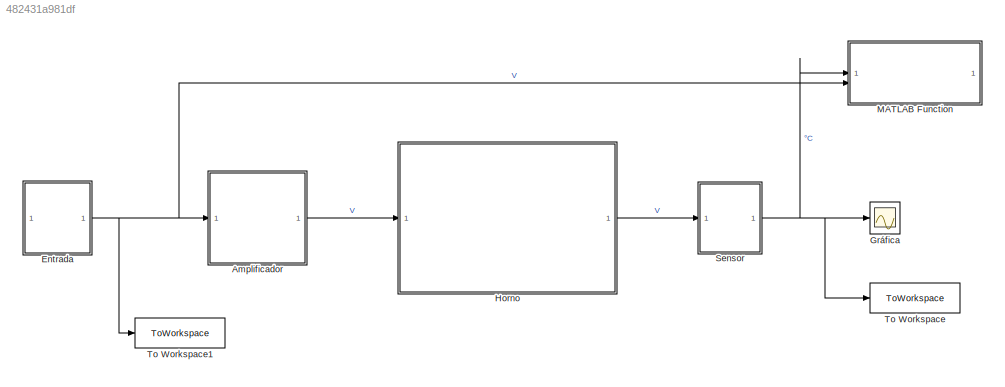
MODEL slx_482431a981df
KIND model
CONFIG AbsTol = auto
CONFIG EnableMultiTasking = off
CONFIG FixedStep = auto
CONFIG MaxStep = auto
CONFIG MinStep = auto
CONFIG RelTol = 1e-3
CONFIG SampleTimeConstraint = Unconstrained
CONFIG SolverName = VariableStepAuto
CONFIG StartTime = 0.0
CONFIG StopTime = 30
WORKSPACE source: mxarray member
WORKSPACE algo = 1
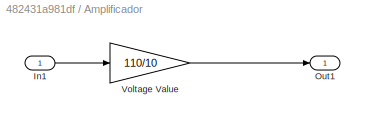
BLOCK [SubSystem] Amplificador
BLOCK [Inport] Amplificador/In1
BLOCK [Outport] Amplificador/Out1
BLOCK [Gain] Amplificador/Voltage Value
  Gain = 110/10
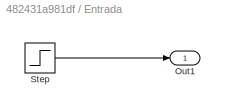
BLOCK [SubSystem] Entrada
BLOCK [Outport] Entrada/Out1
BLOCK [Step] Entrada/Step
  After = 2.5
  SampleTime = 0
  Time = 0
BLOCK [Scope] Gráfica
  Floating = off
  NumInputPorts = 1
  ScopeSpecificationString = Simulink.scopes.TimeScopeBlockCfg('CurrentConfiguration', extmgr.ConfigurationSet(extmgr.Configuration('Core','General UI',true),extmgr.Configuration('Core','Source UI',true),extmgr.Configuration('Sources','WiredSimulink',true),extmgr.Configuration('Visuals','Time Domain',true,'SerializedDisplays',{struct('MinYLimReal','17.51684','MaxYLimReal','42.3484','YLabelReal','','MinYLimMag','17.51684','Max...<+1413ch>
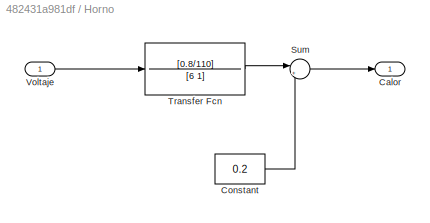
BLOCK [SubSystem] Horno
BLOCK [Outport] Horno/Calor
BLOCK [Constant] Horno/Constant
  Value = 0.2
  VectorParams1D = off
BLOCK [Sum] Horno/Sum
  Inputs = |++
BLOCK [TransferFcn] Horno/Transfer Fcn
  Denominator = [6 1]
  Numerator = [0.8/110]
BLOCK [Inport] Horno/Voltaje
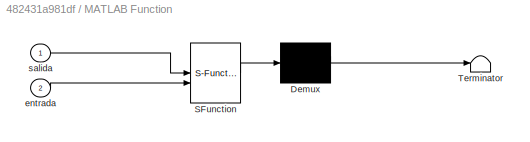
BLOCK [SubSystem] MATLAB Function
  ErrorFcn = Stateflow.Translate.translate
  PermitHierarchicalResolution = ExplicitOnly
  SFBlockType = MATLAB Function
  TreatAsAtomicUnit = on
BLOCK [Demux] MATLAB Function/ Demux 
  Outputs = 1
BLOCK [S-Function] MATLAB Function/ SFunction 
  EnableBusSupport = on
  FunctionName = sf_sfun
  PortCounts = [2 1]
  SFcnIsStateOwnerBlock = off
  SFunctionDeploymentMode = off
  Tag = Stateflow S-Function 2
BLOCK [Terminator] MATLAB Function/ Terminator 
BLOCK [Inport] MATLAB Function/entrada
  Port = 2
BLOCK [Inport] MATLAB Function/salida
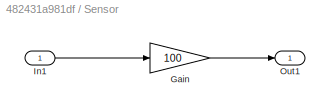
BLOCK [SubSystem] Sensor
BLOCK [Gain] Sensor/Gain
  Gain = 100
BLOCK [Inport] Sensor/In1
BLOCK [Outport] Sensor/Out1
BLOCK [ToWorkspace] To Workspace
  FixptAsFi = on
  MaxDataPoints = inf
  SampleTime = -1
  SaveFormat = Timeseries
  VariableName = salida
BLOCK [ToWorkspace] To Workspace1
  FixptAsFi = on
  MaxDataPoints = inf
  SampleTime = -1
  SaveFormat = Timeseries
  VariableName = entrada
LINE Amplificador/In1:1 -> Amplificador/Voltage Value:1
LINE Amplificador/Voltage Value:1 -> Amplificador/Out1:1
LINE Amplificador:1 -> Horno:1
LINE Entrada/Step:1 -> Entrada/Out1:1
NET Entrada:1 -> Amplificador:1, MATLAB Function:2, To Workspace1:1
LINE Horno/Constant:1 -> Horno/Sum:2
LINE Horno/Sum:1 -> Horno/Calor:1
LINE Horno/Transfer Fcn:1 -> Horno/Sum:1
LINE Horno/Voltaje:1 -> Horno/Transfer Fcn:1
LINE Horno:1 -> Sensor:1
LINE Sensor/Gain:1 -> Sensor/Out1:1
LINE Sensor/In1:1 -> Sensor/Gain:1
NET Sensor:1 -> Gráfica:1, MATLAB Function:1, To Workspace:1
note: NET lines group one-source signal fan-out (src -> all destinations, sorted); 1:1 wires keep LINE
CHART MATLAB Function states=1 transitions=1
  STATE_LABEL 'eML_blk_kernel()'
  STATE_LABEL "SCRIPT:\nfunction fcn(salida, entrada)\nif salida>100\n    salida=100;\nelseif salida<0\n    salida=0;\nend\nif entrada>10\n    entrada=10;\nelseif entrada<0\n    entrada=0;\nend\nclf\n\nrectangle('Position',[0 0 10 7],'FaceColor',[1 1 1])\nrectangle('Position',[1 1 4 3],'FaceColor',[138/255 139/255 137/255])\nhold on\nrectangle('Position',[1.7 1.5 2.9 2],'FaceColor',[255/255 255/255 (10-entrada)/10])\nrectangle('P...<+1052ch>"
CHART  states=0 transitions=0
